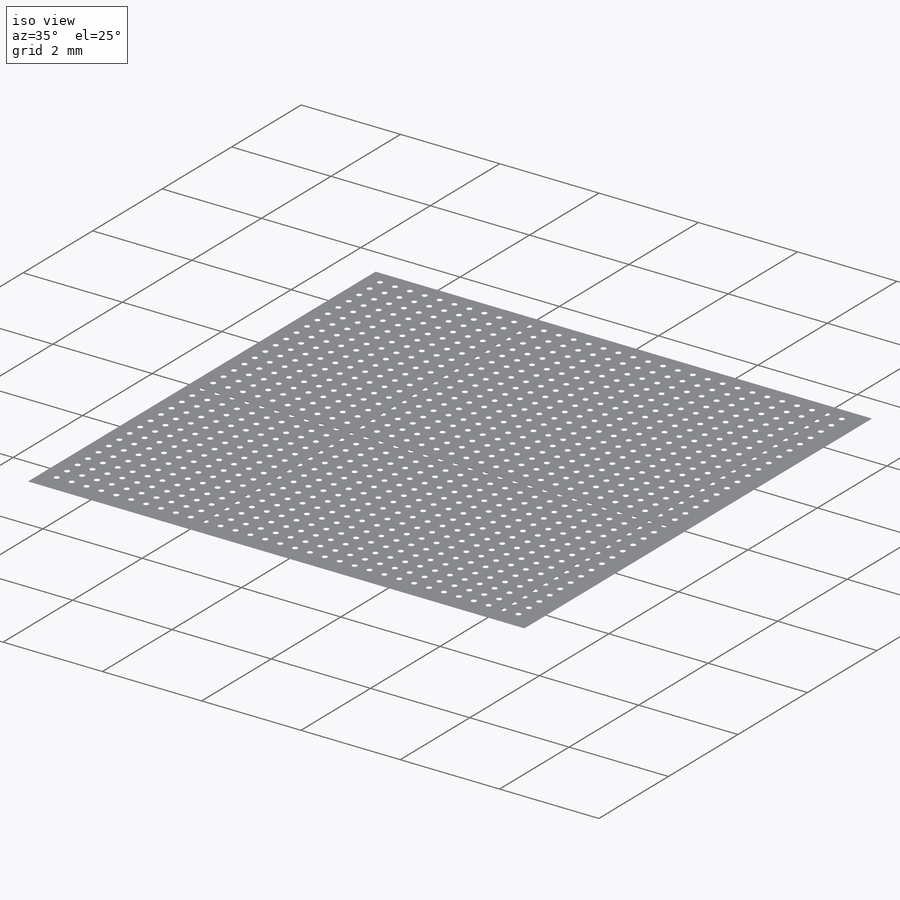
[diagram: iso view]
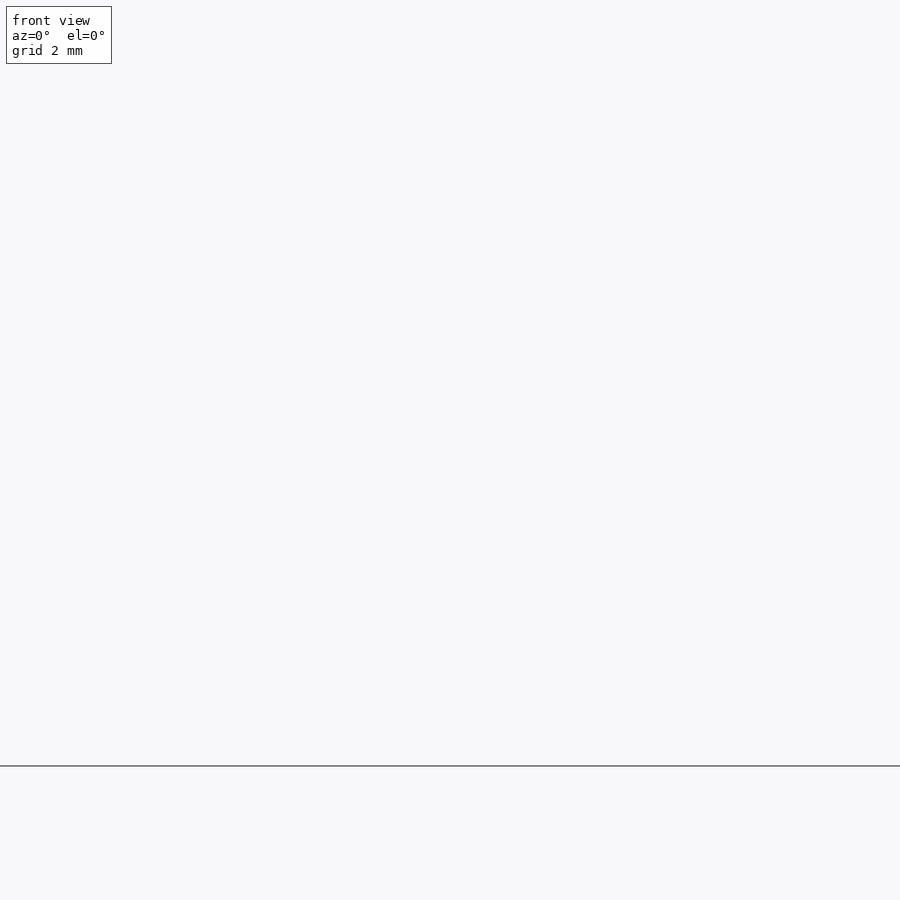
[diagram: front view]
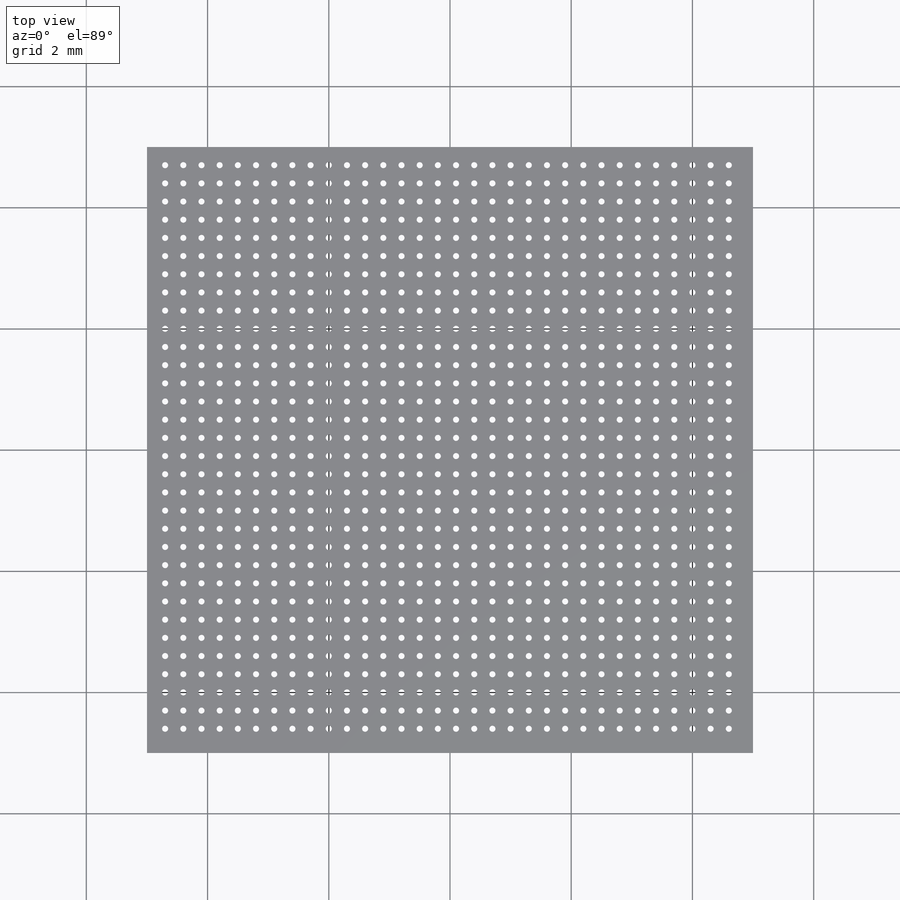
[diagram: top view]
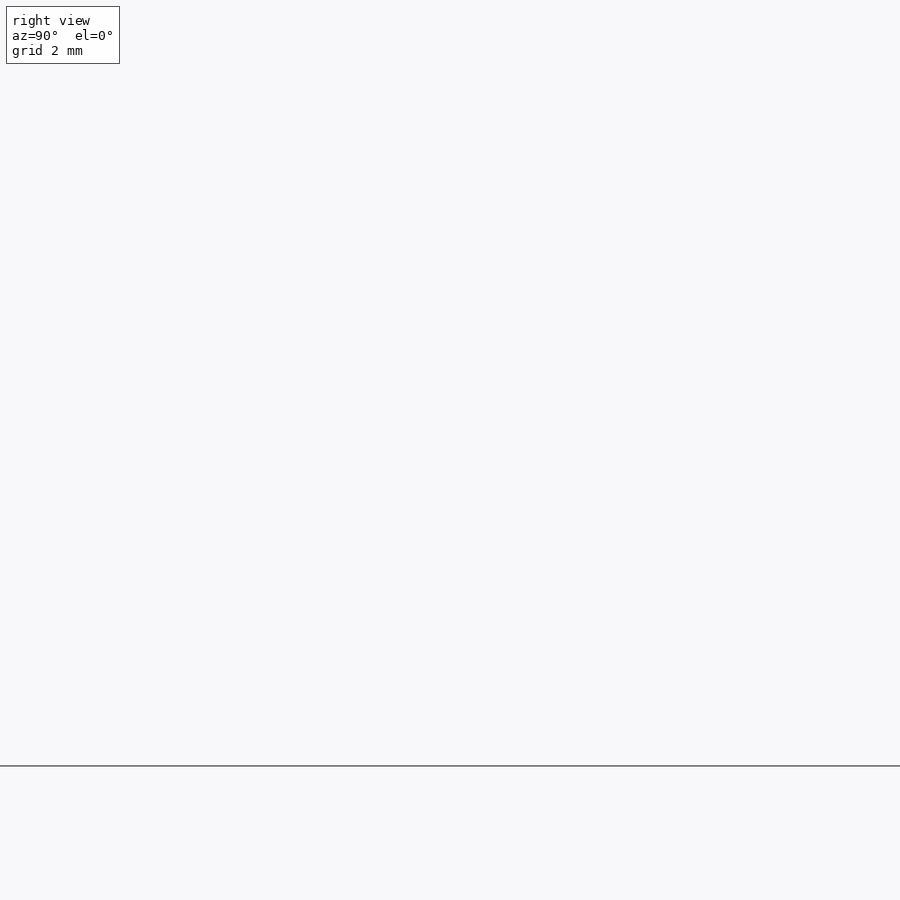
[diagram: right view]
SOLIDWORKS PART (.sldprt)
format: sldprt  version: not decoded by parser v0  size: 1,472,512 bytes
history: native  units: mm
features: sketch x2, extrude x2, material x1, pattern_linear x1 (+13 scaffold rows collapsed)
feature tree (19):
  scaffold x13  (default folders/planes/origin — collapsed)
  material  "Material <not specified>"
  sketch  "Sketch1"  dims[D1=10.0mm D2=10.0mm]
  extrude  "Boss-Extrude1"  Depth=1.5mm
  sketch  "Sketch2"  dims[D2=0.1mm D1=0.3mm]
  extrude  "Boss-Extrude2"  Depth=20mm
  pattern_linear  "LPattern1"  Count1=32 Count2=32 Spacing1=0.3mm Spacing2=0.3mm
decode coverage: 5 of 5 modeling features carry decoded parameters
note: suppression state not decoded; provenance and decode notes live in map.json
